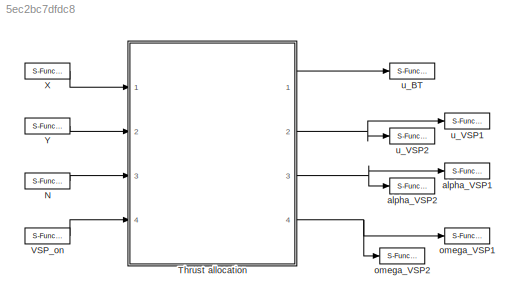
MODEL slx_5ec2bc7dfdc8
KIND model
BLOCK [S-Function] N
  CopyFcn = NIVeriStand_MDL_functions('', 'IO_copy');
  DeleteFcn = NIVeriStand_MDL_functions('', 'IO_delete');
  EnableBusSupport = off
  FunctionName = NIVeriStandIO
  MoveFcn = set_param(gcb, 'Mask', 'on');
  Parameters = width dtype portnum stime stype btype
  Ports = [0, 1]
  Priority = 3
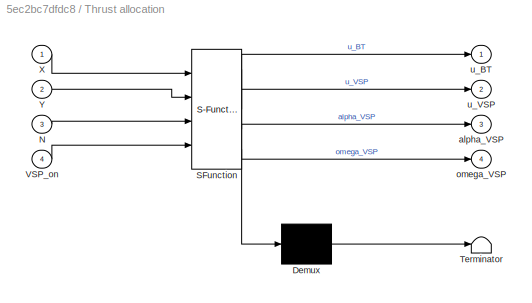
BLOCK [SubSystem] Thrust allocation
  ErrorFcn = Stateflow.Translate.translate
  PermitHierarchicalResolution = ExplicitOnly
  Ports = [4, 4]
  RequestExecContextInheritance = off
  SFBlockType = MATLAB Function
  TreatAsAtomicUnit = on
BLOCK [Demux] Thrust allocation/ Demux 
  Outputs = 1
  Ports = [1, 1]
BLOCK [S-Function] Thrust allocation/ SFunction 
  EnableBusSupport = on
  FunctionName = sf_sfun
  PortCounts = [4 5]
  Ports = [4, 5]
  Tag = Stateflow S-Function ctrl_TA_basic 2
BLOCK [Terminator] Thrust allocation/ Terminator 
BLOCK [Inport] Thrust allocation/N
  IconDisplay = Port number
  Port = 3
BLOCK [Inport] Thrust allocation/VSP_on
  IconDisplay = Port number
  Port = 4
BLOCK [Inport] Thrust allocation/X
  IconDisplay = Port number
BLOCK [Inport] Thrust allocation/Y
  IconDisplay = Port number
  Port = 2
BLOCK [Outport] Thrust allocation/alpha_VSP
  IconDisplay = Port number
  Port = 3
BLOCK [Outport] Thrust allocation/omega_VSP
  IconDisplay = Port number
  Port = 4
BLOCK [Outport] Thrust allocation/u_BT
  IconDisplay = Port number
BLOCK [Outport] Thrust allocation/u_VSP
  IconDisplay = Port number
  Port = 2
BLOCK [S-Function] VSP_on
  CopyFcn = NIVeriStand_MDL_functions('', 'IO_copy');
  DeleteFcn = NIVeriStand_MDL_functions('', 'IO_delete');
  EnableBusSupport = off
  FunctionName = NIVeriStandIO
  MoveFcn = set_param(gcb, 'Mask', 'on');
  Parameters = width dtype portnum stime stype btype
  Ports = [0, 1]
  Priority = 4
BLOCK [S-Function] X
  CopyFcn = NIVeriStand_MDL_functions('', 'IO_copy');
  DeleteFcn = NIVeriStand_MDL_functions('', 'IO_delete');
  EnableBusSupport = off
  FunctionName = NIVeriStandIO
  MoveFcn = set_param(gcb, 'Mask', 'on');
  Parameters = width dtype portnum stime stype btype
  Ports = [0, 1]
  Priority = 1
BLOCK [S-Function] Y
  CopyFcn = NIVeriStand_MDL_functions('', 'IO_copy');
  DeleteFcn = NIVeriStand_MDL_functions('', 'IO_delete');
  EnableBusSupport = off
  FunctionName = NIVeriStandIO
  MoveFcn = set_param(gcb, 'Mask', 'on');
  Parameters = width dtype portnum stime stype btype
  Ports = [0, 1]
  Priority = 2
BLOCK [S-Function] alpha_VSP1
  CopyFcn = NIVeriStand_MDL_functions('', 'IO_copy');
  DeleteFcn = NIVeriStand_MDL_functions('', 'IO_delete');
  EnableBusSupport = off
  FunctionName = NIVeriStandIO
  MoveFcn = set_param(gcb, 'Mask', 'on');
  Parameters = width dtype portnum stime stype btype
  Ports = [1]
  Priority = 4
BLOCK [S-Function] alpha_VSP2
  CopyFcn = NIVeriStand_MDL_functions('', 'IO_copy');
  DeleteFcn = NIVeriStand_MDL_functions('', 'IO_delete');
  EnableBusSupport = off
  FunctionName = NIVeriStandIO
  MoveFcn = set_param(gcb, 'Mask', 'on');
  Parameters = width dtype portnum stime stype btype
  Ports = [1]
  Priority = 5
BLOCK [S-Function] omega_VSP1
  CopyFcn = NIVeriStand_MDL_functions('', 'IO_copy');
  DeleteFcn = NIVeriStand_MDL_functions('', 'IO_delete');
  EnableBusSupport = off
  FunctionName = NIVeriStandIO
  MoveFcn = set_param(gcb, 'Mask', 'on');
  Parameters = width dtype portnum stime stype btype
  Ports = [1]
  Priority = 6
BLOCK [S-Function] omega_VSP2
  CopyFcn = NIVeriStand_MDL_functions('', 'IO_copy');
  DeleteFcn = NIVeriStand_MDL_functions('', 'IO_delete');
  EnableBusSupport = off
  FunctionName = NIVeriStandIO
  MoveFcn = set_param(gcb, 'Mask', 'on');
  Parameters = width dtype portnum stime stype btype
  Ports = [1]
  Priority = 7
BLOCK [S-Function] u_BT
  CopyFcn = NIVeriStand_MDL_functions('', 'IO_copy');
  DeleteFcn = NIVeriStand_MDL_functions('', 'IO_delete');
  EnableBusSupport = off
  FunctionName = NIVeriStandIO
  MoveFcn = set_param(gcb, 'Mask', 'on');
  Parameters = width dtype portnum stime stype btype
  Ports = [1]
  Priority = 1
BLOCK [S-Function] u_VSP1
  CopyFcn = NIVeriStand_MDL_functions('', 'IO_copy');
  DeleteFcn = NIVeriStand_MDL_functions('', 'IO_delete');
  EnableBusSupport = off
  FunctionName = NIVeriStandIO
  MoveFcn = set_param(gcb, 'Mask', 'on');
  Parameters = width dtype portnum stime stype btype
  Ports = [1]
  Priority = 2
BLOCK [S-Function] u_VSP2
  CopyFcn = NIVeriStand_MDL_functions('', 'IO_copy');
  DeleteFcn = NIVeriStand_MDL_functions('', 'IO_delete');
  EnableBusSupport = off
  FunctionName = NIVeriStandIO
  MoveFcn = set_param(gcb, 'Mask', 'on');
  Parameters = width dtype portnum stime stype btype
  Ports = [1]
  Priority = 3
LINE N:1 -> Thrust allocation:3
LINE Thrust allocation:1 -> u_BT:1
NET Thrust allocation:2 -> u_VSP1:1, u_VSP2:1
NET Thrust allocation:3 -> alpha_VSP1:1, alpha_VSP2:1
NET Thrust allocation:4 -> omega_VSP1:1, omega_VSP2:1
LINE VSP_on:1 -> Thrust allocation:4
LINE X:1 -> Thrust allocation:1
LINE Y:1 -> Thrust allocation:2
note: NET lines group one-source signal fan-out (src -> all destinations, sorted); 1:1 wires keep LINE
